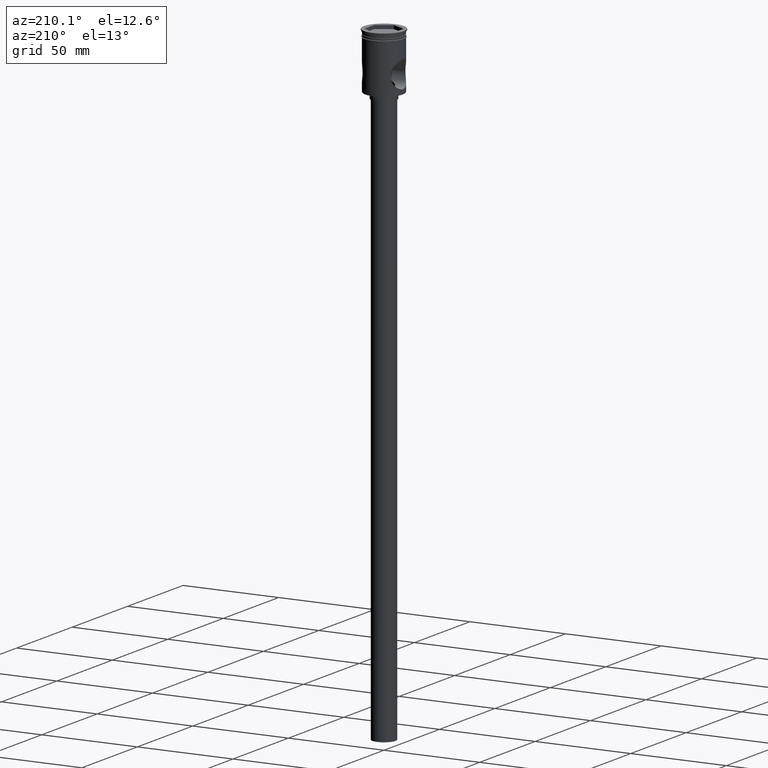
[diagram: clean part render]
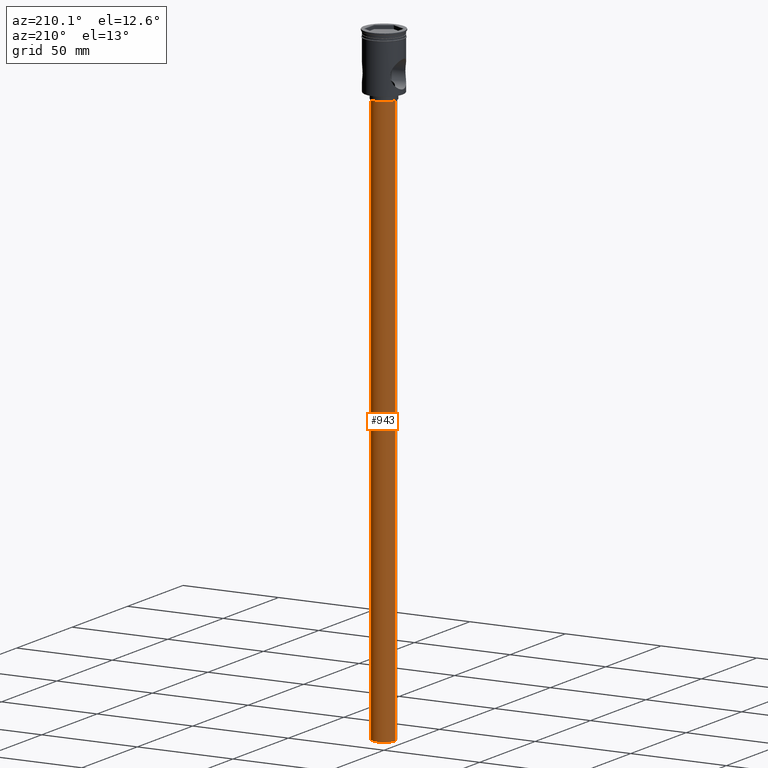
[diagram: same view with one face highlighted and labeled with its STEP entity id]
A machine part, auxiliary view. The second image highlights one B-rep face of the part: STEP entity #943.
In plain terms, the highlighted cylindrical surface (edge-blend (fillet) strip) has radius 6 mm, axis along (-0, -0, 1).
Its self-contained STEP definition (entity closure, byte-faithful):
#22 = LINE ( 'NONE', #606, #1072 ) ;
#102 = CARTESIAN_POINT ( 'NONE',  ( 6.000000000000000888, 0.000000000000000000, -329.5000000000000000 ) ) ;
#213 = DIRECTION ( 'NONE',  ( -0.000000000000000000, -0.000000000000000000, 1.000000000000000000 ) ) ;
#223 = AXIS2_PLACEMENT_3D ( 'NONE', #489, #1517, #450 ) ;
#243 = DIRECTION ( 'NONE',  ( 0.000000000000000000, 0.000000000000000000, -1.000000000000000000 ) ) ;
#348 = CYLINDRICAL_SURFACE ( 'NONE', #223, 6.000000000000000888 ) ;
#450 = DIRECTION ( 'NONE',  ( 1.000000000000000000, 0.000000000000000000, 0.000000000000000000 ) ) ;
#489 = CARTESIAN_POINT ( 'NONE',  ( 0.000000000000000000, 0.000000000000000000, -329.5000000000000000 ) ) ;
#505 = ORIENTED_EDGE ( 'NONE', *, *, #745, .T. ) ;
#535 = CARTESIAN_POINT ( 'NONE',  ( 6.000000000000000888, 0.000000000000000000, -329.5000000000000000 ) ) ;
#553 = CIRCLE ( 'NONE', #1339, 6.000000000000000888 ) ;
#566 = CARTESIAN_POINT ( 'NONE',  ( -6.000000000000000888, 7.347880794884120722E-16, -329.5000000000000000 ) ) ;
#606 = CARTESIAN_POINT ( 'NONE',  ( -6.000000000000000888, 7.347880794884120722E-16, -329.5000000000000000 ) ) ;
#666 = ORIENTED_EDGE ( 'NONE', *, *, #1248, .T. ) ;
#690 = CARTESIAN_POINT ( 'NONE',  ( 0.000000000000000000, 0.000000000000000000, -329.5000000000000000 ) ) ;
#718 = DIRECTION ( 'NONE',  ( -0.000000000000000000, -0.000000000000000000, 1.000000000000000000 ) ) ;
#719 = DIRECTION ( 'NONE',  ( 0.000000000000000000, 0.000000000000000000, -1.000000000000000000 ) ) ;
#725 = AXIS2_PLACEMENT_3D ( 'NONE', #1193, #243, #1424 ) ;
#745 = EDGE_CURVE ( 'NONE', #1091, #1413, #22, .T. ) ;
#757 = ORIENTED_EDGE ( 'NONE', *, *, #831, .F. ) ;
#786 = EDGE_CURVE ( 'NONE', #1485, #1389, #1239, .T. ) ;
#799 = CARTESIAN_POINT ( 'NONE',  ( -6.000000000000000888, 7.347880794884120722E-16, -32.50000000000000000 ) ) ;
#831 = EDGE_CURVE ( 'NONE', #1091, #1485, #553, .T. ) ;
#873 = VECTOR ( 'NONE', #213, 1000.000000000000000 ) ;
#943 = ADVANCED_FACE ( 'NONE', ( #1486 ), #348, .T. ) ;
#1047 = CIRCLE ( 'NONE', #725, 6.000000000000000888 ) ;
#1072 = VECTOR ( 'NONE', #718, 1000.000000000000000 ) ;
#1091 = VERTEX_POINT ( 'NONE', #566 ) ;
#1149 = CARTESIAN_POINT ( 'NONE',  ( 6.000000000000000888, 0.000000000000000000, -32.50000000000000000 ) ) ;
#1193 = CARTESIAN_POINT ( 'NONE',  ( 0.000000000000000000, 0.000000000000000000, -32.50000000000000000 ) ) ;
#1194 = DIRECTION ( 'NONE',  ( -1.000000000000000000, 0.000000000000000000, 0.000000000000000000 ) ) ;
#1226 = EDGE_LOOP ( 'NONE', ( #757, #505, #666, #1254 ) ) ;
#1239 = LINE ( 'NONE', #535, #873 ) ;
#1248 = EDGE_CURVE ( 'NONE', #1413, #1389, #1047, .T. ) ;
#1254 = ORIENTED_EDGE ( 'NONE', *, *, #786, .F. ) ;
#1339 = AXIS2_PLACEMENT_3D ( 'NONE', #690, #719, #1194 ) ;
#1389 = VERTEX_POINT ( 'NONE', #1149 ) ;
#1413 = VERTEX_POINT ( 'NONE', #799 ) ;
#1424 = DIRECTION ( 'NONE',  ( -1.000000000000000000, 0.000000000000000000, 0.000000000000000000 ) ) ;
#1485 = VERTEX_POINT ( 'NONE', #102 ) ;
#1486 = FACE_OUTER_BOUND ( 'NONE', #1226, .T. ) ;
#1517 = DIRECTION ( 'NONE',  ( -0.000000000000000000, -0.000000000000000000, 1.000000000000000000 ) ) ;